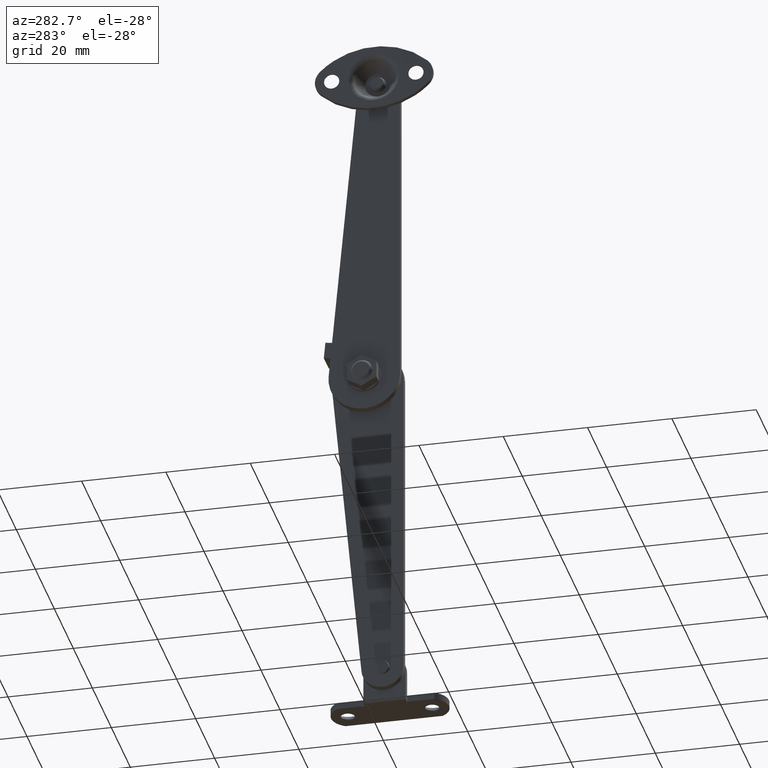
[diagram: clean part render]
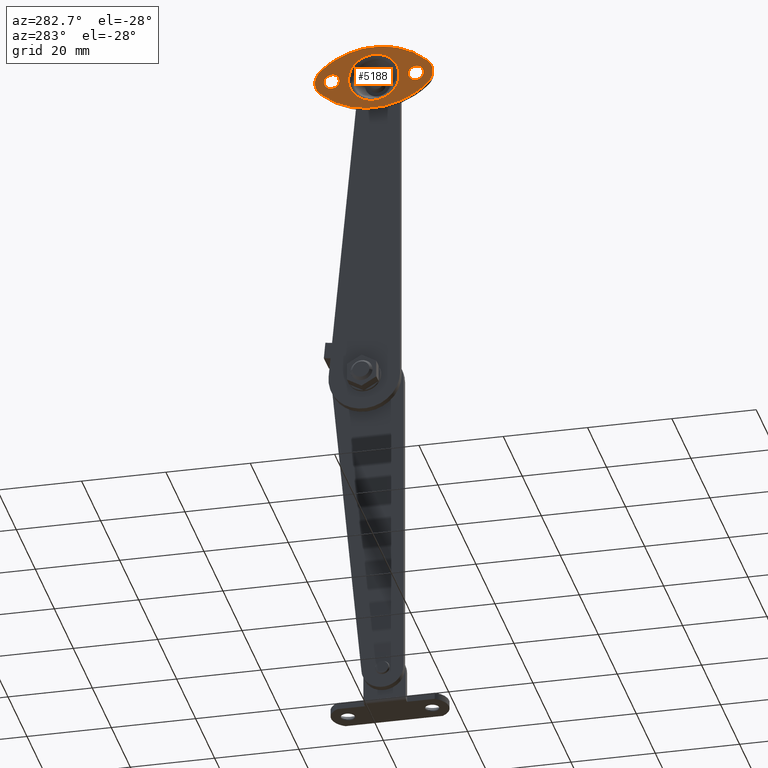
[diagram: same view with one face highlighted and labeled with its STEP entity id]
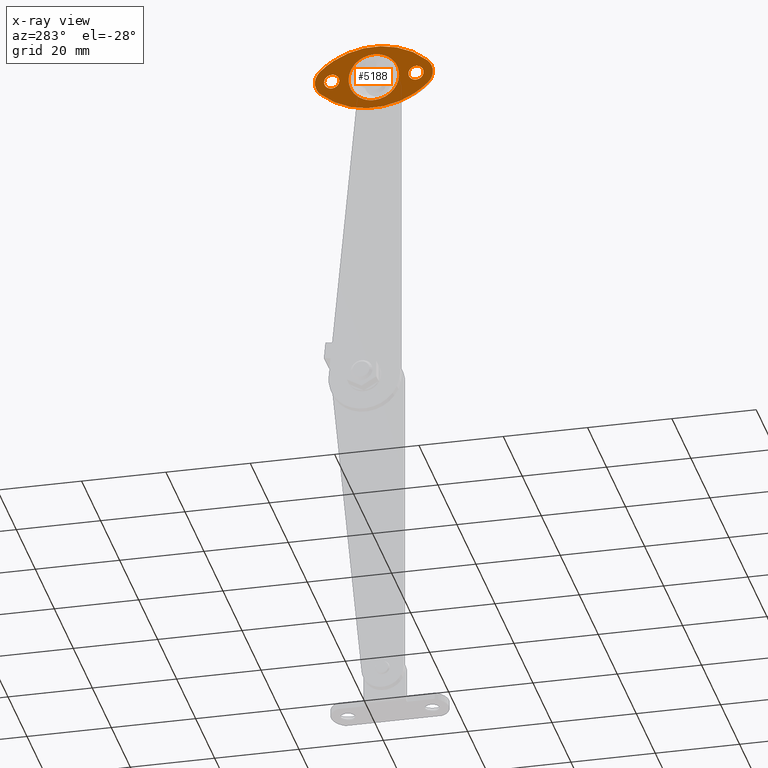
[diagram: x-ray of the same camera — body ghosted, the highlighted face saturated]
A machine part, auxiliary view. The second image highlights one B-rep face of the part: STEP entity #5188.
The next image is the same camera in x-ray: the body ghosted, the highlighted face saturated — about 0% of this face is hidden behind the body in this view.
In plain terms, the highlighted face is a freeform B-spline surface patch.
Its self-contained STEP definition (entity closure, byte-faithful):
#3640=CARTESIAN_POINT('',(-5.500008000000000,6.499941000000001,76.799999999999898));
#3641=VERTEX_POINT('',#3640);
#3642=CARTESIAN_POINT('',(-5.500007999624639,8.294392200866160,75.141226375231270));
#3643=VERTEX_POINT('',#3642);
#3644=CARTESIAN_POINT('',(-5.500008000000000,6.499941000000001,76.799999999999898));
#3645=CARTESIAN_POINT('',(-5.500008000000000,8.163843879605443,76.799999999999883));
#3646=CARTESIAN_POINT('',(-5.500007999624639,8.294392200866160,75.141226375231270));
#3654=(BOUNDED_CURVE()B_SPLINE_CURVE(2,(#3644,#3645,#3646),.UNSPECIFIED.,.F.,.U.)B_SPLINE_CURVE_WITH_KNOTS((3,3),(0.0,0.236331300080276),.UNSPECIFIED.)CURVE()GEOMETRIC_REPRESENTATION_ITEM()RATIONAL_B_SPLINE_CURVE((1.0,0.723120659252480,0.969723355018810))REPRESENTATION_ITEM(''));
#3655=EDGE_CURVE('',#3641,#3643,#3654,.T.);
#3696=CARTESIAN_POINT('',(-5.500007999624639,4.705489799133842,74.858773624768730));
#3697=VERTEX_POINT('',#3696);
#3703=CARTESIAN_POINT('',(-5.500007999624639,4.705489799133842,74.858773624768730));
#3704=CARTESIAN_POINT('',(-5.500007999999999,4.699941000000101,74.929277804481075));
#3705=CARTESIAN_POINT('',(-5.500008000000000,4.699941000000100,75.0));
#3706=CARTESIAN_POINT('',(-5.500008000000001,4.699941000000100,76.799999999999898));
#3707=CARTESIAN_POINT('',(-5.500008000000000,6.499941000000001,76.799999999999898));
#3715=(BOUNDED_CURVE()B_SPLINE_CURVE(2,(#3703,#3704,#3705,#3706,#3707),.UNSPECIFIED.,.F.,.U.)B_SPLINE_CURVE_WITH_KNOTS((3,2,3),(0.736331300080276,0.750000000000000,1.0),.UNSPECIFIED.)CURVE()GEOMETRIC_REPRESENTATION_ITEM()RATIONAL_B_SPLINE_CURVE((0.969723355018809,0.983986121934068,1.0,0.707106781186547,1.0))REPRESENTATION_ITEM(''));
#3716=EDGE_CURVE('',#3697,#3641,#3715,.T.);
#3739=CARTESIAN_POINT('',(-5.500008000000000,6.499941000000001,73.200000000000102));
#3740=VERTEX_POINT('',#3739);
#3741=CARTESIAN_POINT('',(-5.500007999624639,8.294392200866160,75.141226375231270));
#3742=CARTESIAN_POINT('',(-5.500008000000001,8.299940999999901,75.070722195518911));
#3743=CARTESIAN_POINT('',(-5.500008000000000,8.299940999999901,75.0));
#3744=CARTESIAN_POINT('',(-5.500008000000001,8.299940999999901,73.200000000000102));
#3745=CARTESIAN_POINT('',(-5.500008000000000,6.499941000000001,73.200000000000102));
#3753=(BOUNDED_CURVE()B_SPLINE_CURVE(2,(#3741,#3742,#3743,#3744,#3745),.UNSPECIFIED.,.F.,.U.)B_SPLINE_CURVE_WITH_KNOTS((3,2,3),(0.236331300080277,0.250000000000000,0.500000000000000),.UNSPECIFIED.)CURVE()GEOMETRIC_REPRESENTATION_ITEM()RATIONAL_B_SPLINE_CURVE((0.969723355018810,0.983986121934068,1.0,0.707106781186547,1.0))REPRESENTATION_ITEM(''));
#3754=EDGE_CURVE('',#3643,#3740,#3753,.T.);
#3756=CARTESIAN_POINT('',(-5.500008000000000,6.499941000000001,73.200000000000102));
#3757=CARTESIAN_POINT('',(-5.500008000000001,4.836038120394554,73.200000000000102));
#3758=CARTESIAN_POINT('',(-5.500007999624639,4.705489799133842,74.858773624768730));
#3766=(BOUNDED_CURVE()B_SPLINE_CURVE(2,(#3756,#3757,#3758),.UNSPECIFIED.,.F.,.U.)B_SPLINE_CURVE_WITH_KNOTS((3,3),(0.500000000000000,0.736331300080277),.UNSPECIFIED.)CURVE()GEOMETRIC_REPRESENTATION_ITEM()RATIONAL_B_SPLINE_CURVE((1.0,0.723120659252479,0.969723355018811))REPRESENTATION_ITEM(''));
#3767=EDGE_CURVE('',#3740,#3697,#3766,.T.);
#3822=CARTESIAN_POINT('',(-5.500008000000000,-13.500043000000000,76.799999999999898));
#3823=VERTEX_POINT('',#3822);
#3824=CARTESIAN_POINT('',(-5.500007999624636,-11.705591799133851,75.141226375231270));
#3825=VERTEX_POINT('',#3824);
#3826=CARTESIAN_POINT('',(-5.500008000000000,-13.500043000000000,76.799999999999898));
#3827=CARTESIAN_POINT('',(-5.500008000000000,-11.836140120394569,76.799999999999883));
#3828=CARTESIAN_POINT('',(-5.500007999624637,-11.705591799133845,75.141226375231270));
#3836=(BOUNDED_CURVE()B_SPLINE_CURVE(2,(#3826,#3827,#3828),.UNSPECIFIED.,.F.,.U.)B_SPLINE_CURVE_WITH_KNOTS((3,3),(0.0,0.236331300080275),.UNSPECIFIED.)CURVE()GEOMETRIC_REPRESENTATION_ITEM()RATIONAL_B_SPLINE_CURVE((1.0,0.723120659252481,0.969723355018807))REPRESENTATION_ITEM(''));
#3837=EDGE_CURVE('',#3823,#3825,#3836,.T.);
#3878=CARTESIAN_POINT('',(-5.500007999624636,-15.294494200866160,74.858773624768730));
#3879=VERTEX_POINT('',#3878);
#3885=CARTESIAN_POINT('',(-5.500007999624635,-15.294494200866158,74.858773624768730));
#3886=CARTESIAN_POINT('',(-5.500008000000000,-15.300042999999903,74.929277804481075));
#3887=CARTESIAN_POINT('',(-5.500008000000000,-15.300042999999899,75.0));
#3888=CARTESIAN_POINT('',(-5.500008000000001,-15.300042999999906,76.799999999999898));
#3889=CARTESIAN_POINT('',(-5.500008000000000,-13.500043000000000,76.799999999999898));
#3897=(BOUNDED_CURVE()B_SPLINE_CURVE(2,(#3885,#3886,#3887,#3888,#3889),.UNSPECIFIED.,.F.,.U.)B_SPLINE_CURVE_WITH_KNOTS((3,2,3),(0.736331300080276,0.750000000000000,1.0),.UNSPECIFIED.)CURVE()GEOMETRIC_REPRESENTATION_ITEM()RATIONAL_B_SPLINE_CURVE((0.969723355018809,0.983986121934067,1.0,0.707106781186547,1.0))REPRESENTATION_ITEM(''));
#3898=EDGE_CURVE('',#3879,#3823,#3897,.T.);
#3921=CARTESIAN_POINT('',(-5.500008000000000,-13.500043000000000,73.200000000000102));
#3922=VERTEX_POINT('',#3921);
#3923=CARTESIAN_POINT('',(-5.500007999624636,-11.705591799133847,75.141226375231270));
#3924=CARTESIAN_POINT('',(-5.500008000000001,-11.700043000000102,75.070722195518925));
#3925=CARTESIAN_POINT('',(-5.500008000000000,-11.700043000000100,75.0));
#3926=CARTESIAN_POINT('',(-5.500008000000001,-11.700043000000099,73.200000000000102));
#3927=CARTESIAN_POINT('',(-5.500008000000000,-13.500043000000000,73.200000000000102));
#3935=(BOUNDED_CURVE()B_SPLINE_CURVE(2,(#3923,#3924,#3925,#3926,#3927),.UNSPECIFIED.,.F.,.U.)B_SPLINE_CURVE_WITH_KNOTS((3,2,3),(0.236331300080275,0.250000000000000,0.500000000000000),.UNSPECIFIED.)CURVE()GEOMETRIC_REPRESENTATION_ITEM()RATIONAL_B_SPLINE_CURVE((0.969723355018807,0.983986121934066,1.0,0.707106781186547,1.0))REPRESENTATION_ITEM(''));
#3936=EDGE_CURVE('',#3825,#3922,#3935,.T.);
#3938=CARTESIAN_POINT('',(-5.500008000000000,-13.500043000000000,73.200000000000102));
#3939=CARTESIAN_POINT('',(-5.500008000000001,-15.163945879605444,73.200000000000102));
#3940=CARTESIAN_POINT('',(-5.500007999624636,-15.294494200866158,74.858773624768730));
#3948=(BOUNDED_CURVE()B_SPLINE_CURVE(2,(#3938,#3939,#3940),.UNSPECIFIED.,.F.,.U.)B_SPLINE_CURVE_WITH_KNOTS((3,3),(0.500000000000000,0.736331300080277),.UNSPECIFIED.)CURVE()GEOMETRIC_REPRESENTATION_ITEM()RATIONAL_B_SPLINE_CURVE((1.0,0.723120659252479,0.969723355018811))REPRESENTATION_ITEM(''));
#3949=EDGE_CURVE('',#3922,#3879,#3948,.T.);
#4224=CARTESIAN_POINT('',(-5.500007999999999,-1.085311891718184,69.507362278897119));
#4225=VERTEX_POINT('',#4224);
#4239=CARTESIAN_POINT('',(-5.500008000000000,-3.500043000000000,69.000000362757447));
#4240=VERTEX_POINT('',#4239);
#4241=CARTESIAN_POINT('',(-5.500008000000000,-1.085311891718184,69.507362278897133));
#4242=CARTESIAN_POINT('',(-5.500008000000001,-2.239376248836888,69.000000362757447));
#4243=CARTESIAN_POINT('',(-5.500008000000000,-3.500043000000000,69.000000362757447));
#4251=(BOUNDED_CURVE()B_SPLINE_CURVE(2,(#4241,#4242,#4243),.UNSPECIFIED.,.F.,.U.)B_SPLINE_CURVE_WITH_KNOTS((3,3),(0.431662010369753,0.500000000000000),.UNSPECIFIED.)CURVE()GEOMETRIC_REPRESENTATION_ITEM()RATIONAL_B_SPLINE_CURVE((0.883644850174125,0.919937064999826,1.0))REPRESENTATION_ITEM(''));
#4252=EDGE_CURVE('',#4225,#4240,#4251,.T.);
#4254=CARTESIAN_POINT('',(-5.500008000000000,-3.500043000000000,80.999999637242553));
#4255=VERTEX_POINT('',#4254);
#4256=CARTESIAN_POINT('',(-5.500008000000000,-3.500043000000000,69.000000362757447));
#4257=CARTESIAN_POINT('',(-5.500008000000001,-9.500042637242560,69.000000362757461));
#4258=CARTESIAN_POINT('',(-5.500008000000000,-9.500042637242560,75.0));
#4259=CARTESIAN_POINT('',(-5.500008000000001,-9.500042637242560,80.999999637242553));
#4260=CARTESIAN_POINT('',(-5.500008000000000,-3.500043000000000,80.999999637242553));
#4268=(BOUNDED_CURVE()B_SPLINE_CURVE(2,(#4256,#4257,#4258,#4259,#4260),.UNSPECIFIED.,.F.,.U.)B_SPLINE_CURVE_WITH_KNOTS((3,2,3),(0.500000000000000,0.750000000000000,1.0),.UNSPECIFIED.)CURVE()GEOMETRIC_REPRESENTATION_ITEM()RATIONAL_B_SPLINE_CURVE((1.0,0.707106781186547,1.0,0.707106781186547,1.0))REPRESENTATION_ITEM(''));
#4269=EDGE_CURVE('',#4240,#4255,#4268,.T.);
#4271=CARTESIAN_POINT('',(-5.500007999999999,2.329747039124970,76.418993895774946));
#4272=VERTEX_POINT('',#4271);
#4273=CARTESIAN_POINT('',(-5.500008000000000,-3.500043000000000,80.999999637242553));
#4274=CARTESIAN_POINT('',(-5.500008000000000,1.214712173585598,80.999999637242539));
#4275=CARTESIAN_POINT('',(-5.500007999999999,2.329747039124970,76.418993895774932));
#4283=(BOUNDED_CURVE()B_SPLINE_CURVE(2,(#4273,#4274,#4275),.UNSPECIFIED.,.F.,.U.)B_SPLINE_CURVE_WITH_KNOTS((3,3),(0.0,0.209598322261942),.UNSPECIFIED.)CURVE()GEOMETRIC_REPRESENTATION_ITEM()RATIONAL_B_SPLINE_CURVE((1.0,0.754440290939202,0.920631806152595))REPRESENTATION_ITEM(''));
#4284=EDGE_CURVE('',#4255,#4272,#4283,.T.);
#4382=CARTESIAN_POINT('',(-5.500007999999999,2.329747039124971,76.418993895774946));
#4383=CARTESIAN_POINT('',(-5.500008000000000,2.499956637242560,75.719705345745908));
#4384=CARTESIAN_POINT('',(-5.500008000000000,2.499956637242560,75.0));
#4385=CARTESIAN_POINT('',(-5.500008000000000,2.499956637242560,71.083555685376624));
#4386=CARTESIAN_POINT('',(-5.500008000000000,-1.085311891718184,69.507362278897119));
#4394=(BOUNDED_CURVE()B_SPLINE_CURVE(2,(#4382,#4383,#4384,#4385,#4386),.UNSPECIFIED.,.F.,.U.)B_SPLINE_CURVE_WITH_KNOTS((3,2,3),(0.209598322261942,0.250000000000000,0.431662010369753),.UNSPECIFIED.)CURVE()GEOMETRIC_REPRESENTATION_ITEM()RATIONAL_B_SPLINE_CURVE((0.920631806152595,0.952666490247346,1.0,0.787169716186721,0.883644850174125))REPRESENTATION_ITEM(''));
#4395=EDGE_CURVE('',#4272,#4225,#4394,.T.);
#4953=CARTESIAN_POINT('',(-5.500008000000000,-16.258628331201749,72.103450315431004));
#4954=VERTEX_POINT('',#4953);
#4955=CARTESIAN_POINT('',(-5.500008000000000,-16.258625550113351,77.896559476087901));
#4956=VERTEX_POINT('',#4955);
#4957=CARTESIAN_POINT('',(-5.500008000000000,-16.258628331201841,72.103450315430905));
#4958=CARTESIAN_POINT('',(-5.500008000000000,-17.500008670386634,73.285717927454030));
#4959=CARTESIAN_POINT('',(-5.500008000000000,-17.500007847411378,75.000005491707100));
#4960=CARTESIAN_POINT('',(-5.500008000000000,-17.500007024436123,76.714293055960169));
#4961=CARTESIAN_POINT('',(-5.500008000000000,-16.258625550113319,77.896559476087873));
#4969=(BOUNDED_CURVE()B_SPLINE_CURVE(2,(#4957,#4958,#4959,#4960,#4961),.UNSPECIFIED.,.F.,.U.)B_SPLINE_CURVE_WITH_KNOTS((3,2,3),(0.0,0.500000000000000,1.0),.UNSPECIFIED.)CURVE()GEOMETRIC_REPRESENTATION_ITEM()RATIONAL_B_SPLINE_CURVE((1.0,0.919144987240248,1.0,0.919144987240248,1.0))REPRESENTATION_ITEM(''));
#4970=EDGE_CURVE('',#4954,#4956,#4969,.T.);
#5018=CARTESIAN_POINT('',(-5.500008000000000,9.258611971371341,72.103438067953306));
#5019=VERTEX_POINT('',#5018);
#5020=CARTESIAN_POINT('',(-5.500008000000000,9.258611971371341,72.103438067953306));
#5021=CARTESIAN_POINT('',(-5.500007999999999,-3.500014012044895,59.952382662998595));
#5022=CARTESIAN_POINT('',(-5.500008000000000,-16.258628331201798,72.103450315430948));
#5030=(BOUNDED_CURVE()B_SPLINE_CURVE(2,(#5020,#5021,#5022),.UNSPECIFIED.,.F.,.U.)CURVE()GEOMETRIC_REPRESENTATION_ITEM()QUASI_UNIFORM_CURVE()RATIONAL_B_SPLINE_CURVE((1.0,0.724138080501005,1.0))REPRESENTATION_ITEM(''));
#5031=EDGE_CURVE('',#5019,#4954,#5030,.T.);
#5071=CARTESIAN_POINT('',(-5.500008000000000,9.258613325532370,77.896553499492796));
#5072=VERTEX_POINT('',#5071);
#5073=CARTESIAN_POINT('',(-5.500008000000000,9.258613325532364,77.896553499492796));
#5074=CARTESIAN_POINT('',(-5.500008000000000,10.499995720351196,76.714285093752451));
#5075=CARTESIAN_POINT('',(-5.500008000000000,10.499995319630001,74.999995493545498));
#5076=CARTESIAN_POINT('',(-5.500008000000000,10.499994918908815,73.285705893338502));
#5077=CARTESIAN_POINT('',(-5.500008000000000,9.258611971371371,72.103438067953277));
#5085=(BOUNDED_CURVE()B_SPLINE_CURVE(2,(#5073,#5074,#5075,#5076,#5077),.UNSPECIFIED.,.F.,.U.)B_SPLINE_CURVE_WITH_KNOTS((3,2,3),(0.0,0.500000000000000,1.0),.UNSPECIFIED.)CURVE()GEOMETRIC_REPRESENTATION_ITEM()RATIONAL_B_SPLINE_CURVE((1.0,0.919144938909003,1.0,0.919144938909003,1.0))REPRESENTATION_ITEM(''));
#5086=EDGE_CURVE('',#5072,#5019,#5085,.T.);
#5128=CARTESIAN_POINT('',(-5.500008000000000,-16.258625550113351,77.896559476087901));
#5129=CARTESIAN_POINT('',(-5.500008000000000,-3.500003266295469,90.047611352761066));
#5130=CARTESIAN_POINT('',(-5.500008000000000,9.258613325532267,77.896553499492711));
#5138=(BOUNDED_CURVE()B_SPLINE_CURVE(2,(#5128,#5129,#5130),.UNSPECIFIED.,.F.,.U.)CURVE()GEOMETRIC_REPRESENTATION_ITEM()QUASI_UNIFORM_CURVE()RATIONAL_B_SPLINE_CURVE((1.0,0.724138250373273,1.0))REPRESENTATION_ITEM(''));
#5139=EDGE_CURVE('',#4956,#5072,#5138,.T.);
#5159=CARTESIAN_POINT('',(-5.500008000000000,11.898595423554291,83.799199944625201));
#5160=CARTESIAN_POINT('',(-5.500008000000000,-18.898608702354270,83.799199944625201));
#5161=CARTESIAN_POINT('',(-5.500008000000000,11.898595423554291,66.200799631824552));
#5162=CARTESIAN_POINT('',(-5.500008000000000,-18.898608702354270,66.200799631824552));
#5163=B_SPLINE_SURFACE_WITH_KNOTS('',1,1,((#5159,#5161),(#5160,#5162)),.UNSPECIFIED.,.F.,.F.,.U.,(2,2),(2,2),(0.0,30.797204125908550),(0.0,17.598400312800649),.UNSPECIFIED.);
#5164=ORIENTED_EDGE('',*,*,#5139,.T.);
#5165=ORIENTED_EDGE('',*,*,#5086,.T.);
#5166=ORIENTED_EDGE('',*,*,#5031,.T.);
#5167=ORIENTED_EDGE('',*,*,#4970,.T.);
#5168=EDGE_LOOP('',(#5164,#5165,#5166,#5167));
#5169=FACE_OUTER_BOUND('',#5168,.T.);
#5170=ORIENTED_EDGE('',*,*,#4269,.F.);
#5171=ORIENTED_EDGE('',*,*,#4252,.F.);
#5172=ORIENTED_EDGE('',*,*,#4395,.F.);
#5173=ORIENTED_EDGE('',*,*,#4284,.F.);
#5174=EDGE_LOOP('',(#5170,#5171,#5172,#5173));
#5175=FACE_BOUND('',#5174,.T.);
#5176=ORIENTED_EDGE('',*,*,#3949,.F.);
#5177=ORIENTED_EDGE('',*,*,#3936,.F.);
#5178=ORIENTED_EDGE('',*,*,#3837,.F.);
#5179=ORIENTED_EDGE('',*,*,#3898,.F.);
#5180=EDGE_LOOP('',(#5176,#5177,#5178,#5179));
#5181=FACE_BOUND('',#5180,.T.);
#5182=ORIENTED_EDGE('',*,*,#3767,.F.);
#5183=ORIENTED_EDGE('',*,*,#3754,.F.);
#5184=ORIENTED_EDGE('',*,*,#3655,.F.);
#5185=ORIENTED_EDGE('',*,*,#3716,.F.);
#5186=EDGE_LOOP('',(#5182,#5183,#5184,#5185));
#5187=FACE_BOUND('',#5186,.T.);
#5188=ADVANCED_FACE('',(#5169,#5175,#5181,#5187),#5163,.F.);